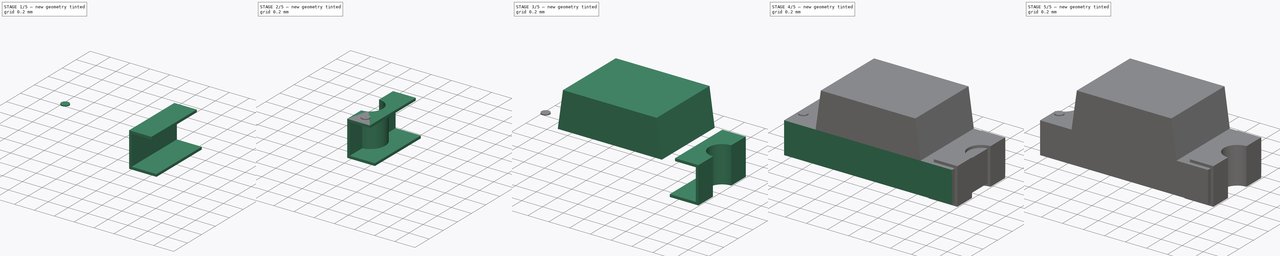
[diagram: build sequence overview — one tinted view per stage of 5, left to right]
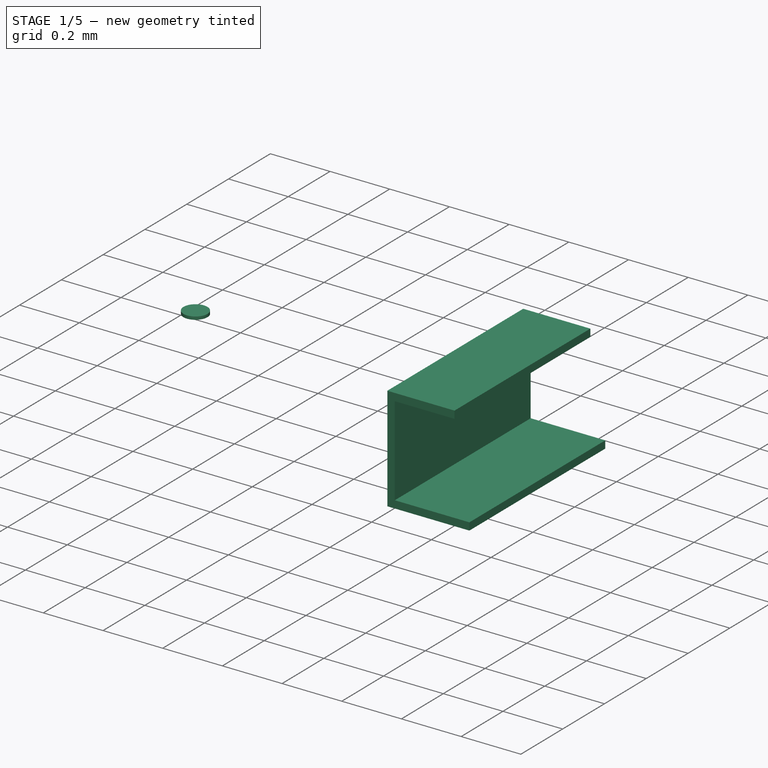
[diagram: stage 1 of 5 — iso view after this stage's code; geometry added in this stage tinted green]
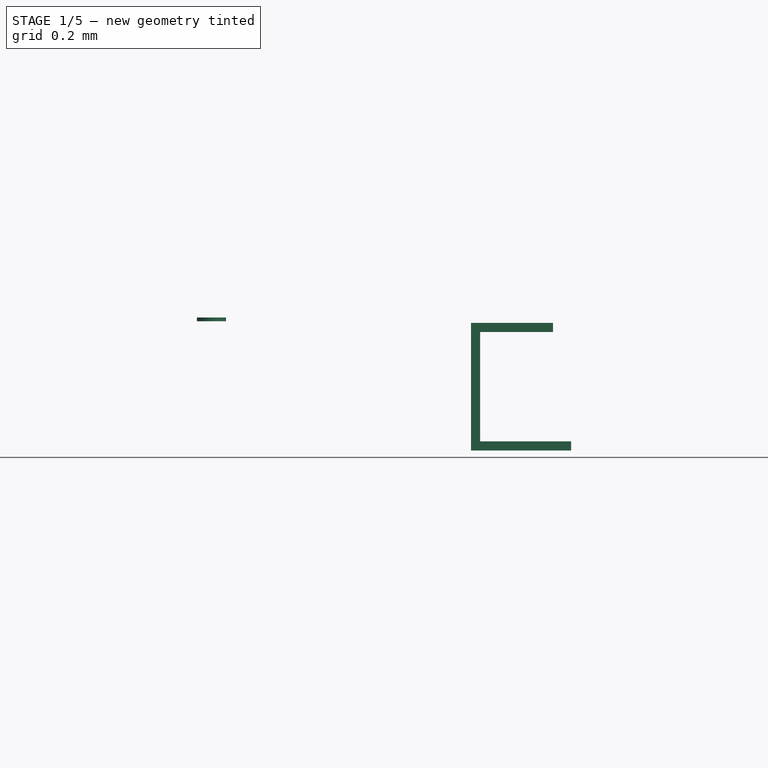
[diagram: stage 1 of 5 — front view after this stage's code; geometry added in this stage tinted green]
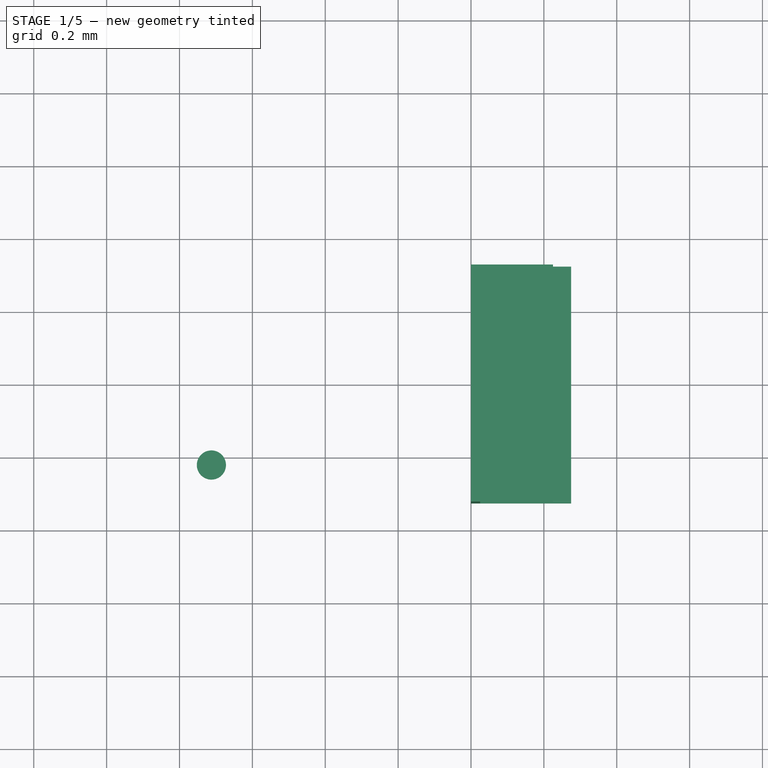
[diagram: stage 1 of 5 — top view after this stage's code; geometry added in this stage tinted green]
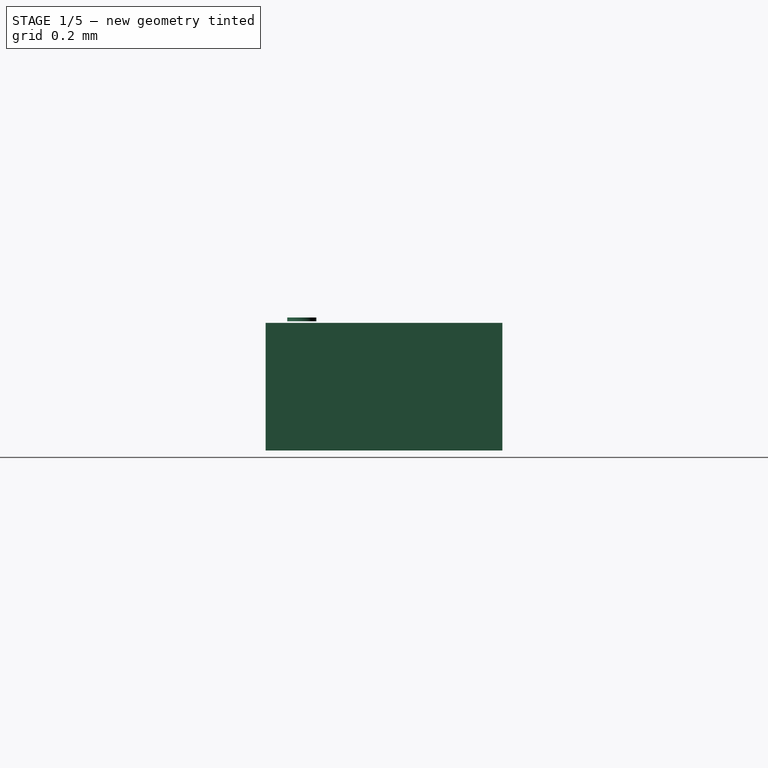
[diagram: stage 1 of 5 — right view after this stage's code; geometry added in this stage tinted green]
FCSTD DOCUMENT  (FreeCAD 0.16R6703 (Git))
Label: LED_0603
License: All rights reserved
LicenseURL: http://en.wikipedia.org/wiki/All_rights_reserved
objects: Sketcher::SketchObject×6, App::DocumentObjectGroup×6, Part::FeaturePython×5, PartDesign::Pad×4, PartDesign::Pocket×2, Part::Part2DObjectPython×1, Part::Extrusion×1, PartDesign::Mirrored×1, Part::Box×1, Part::Mirroring×1
note: 28 computed .brp shape members not serialized (recipe doc carries the construction recipe); baked Part::Feature solids carry a one-line shape summary decoded from their .brp

FEATURE [Part::Part2DObjectPython] Circle  # Draft 2D object (typed FeaturePython)
  FirstAngle = 0
  LastAngle = 0
  MakeFace = true
  Placement = pos=(0.292125,0.09225,0.145454) rot=(0,0,1;0rad)
  Radius = 0.04
FEATURE [Part::Extrusion] Extrude
  Base = -> Circle
  Dir = (0,0,0.01)
  Placement = pos=(-1.00462,-0.31775,0.209312) rot=(0,0,1;0rad)
  Solid = true
FEATURE [Sketcher::SketchObject] Sketch004
  Placement = pos=(0,0,0) rot=(1,0,0;1.5708rad)
  sketch-geometry (9):
    g0: LineSegment StartX=0.225 StartY=0.35 StartZ=0 EndX=0 EndY=0.35 EndZ=0
    g1: LineSegment StartX=0 StartY=0.35 StartZ=0 EndX=0 EndY=0 EndZ=0
    g2: LineSegment StartX=0 StartY=0 StartZ=0 EndX=0.275 EndY=0 EndZ=0
    g3: LineSegment StartX=0.275 StartY=0 StartZ=0 EndX=0.275 EndY=0.025 EndZ=0
    g4: LineSegment StartX=0.275 StartY=0.025 StartZ=0 EndX=0.025 EndY=0.025 EndZ=0
    g5: LineSegment StartX=0.025 StartY=0.025 StartZ=0 EndX=0.025 EndY=0.325 EndZ=0
    g6: LineSegment StartX=0.025 StartY=0.325 StartZ=0 EndX=0.225 EndY=0.325 EndZ=0
    g7: LineSegment StartX=0.225 StartY=0.325 StartZ=0 EndX=0.225 EndY=0.35 EndZ=0
    g8: LineSegment [constr] StartX=0 StartY=0.175 StartZ=0 EndX=0.025 EndY=0.175 EndZ=0
  constraints (27):
    c: Horizontal(g0)
    c: Coincident(g0,g1)
    c: Vertical(g1)
    c: Coincident(g1,g2)
    c: Horizontal(g2)
    c: Coincident(g2,g3)
    c: Vertical(g3)
    c: Coincident(g3,g4)
    c: Horizontal(g4)
    c: Coincident(g4,g5)
    c: Vertical(g5)
    c: Coincident(g5,g6)
    c: Horizontal(g6)
    c: Coincident(g6,g7)
    c: Coincident(g7,g0)
    c: Vertical(g7)
    c: Equal(g7,g3)
    c: PointOnObject(g8,g1)
    c: PointOnObject(g8,g5)
    c: Horizontal(g8)
    c: Symmetric(g5,g4,g8)
    c: Equal(g8,g7)
    c: DistanceY(g7,g7) = 0.025
    c: DistanceY(g1,g1) = 0.35
    c: DistanceX(g0,g0) = 0.225
    c: DistanceX(g2,g2) = 0.275
    c: Coincident(g1,g-1)
FEATURE [PartDesign::Pad] Pad002
  Length = 0.65
  Length2 = 100
  Midplane = true
  Placement = pos=(0,0,0) rot=(1,0,0;1.5708rad)
  Sketch = -> Sketch004
  Type = 0
FEATURE [App::DocumentObjectGroup] Group005  label="mark-src"
  Group = -> [Extrude]
FEATURE [App::DocumentObjectGroup] Group  label="src"
  Group = -> [Group001,Group002,Group003,Group004,Group005]
FEATURE [Part::FeaturePython] Clone008  label="mark"  # Draft clone (typed FeaturePython)
  Objects = -> [Extrude]
  Placement = pos=(-1.00462,-0.31775,0.209312) rot=(0,0,1;0rad)
  Scale = (1,1,1)
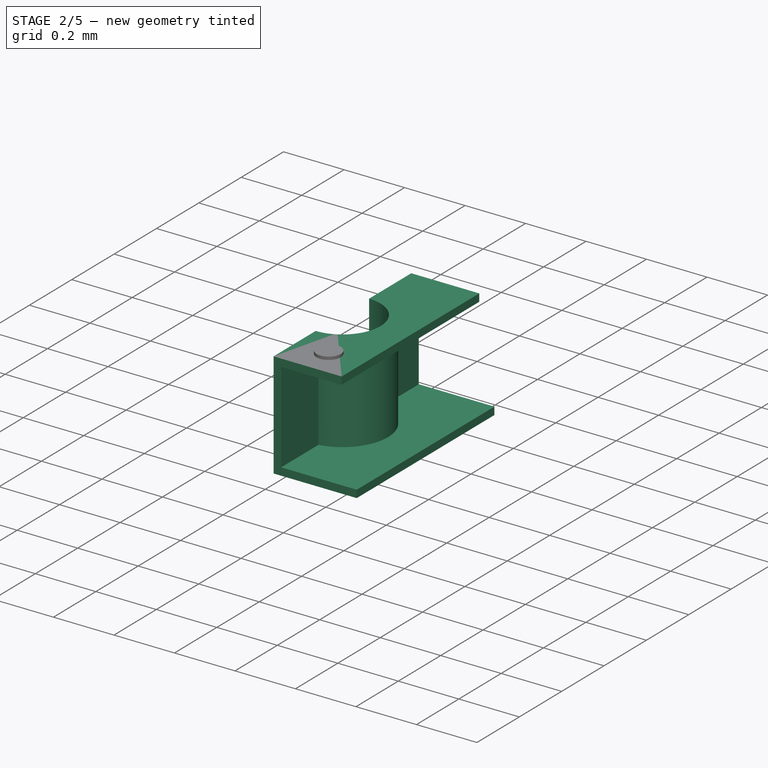
[diagram: stage 2 of 5 — iso view after this stage's code; geometry added in this stage tinted green]
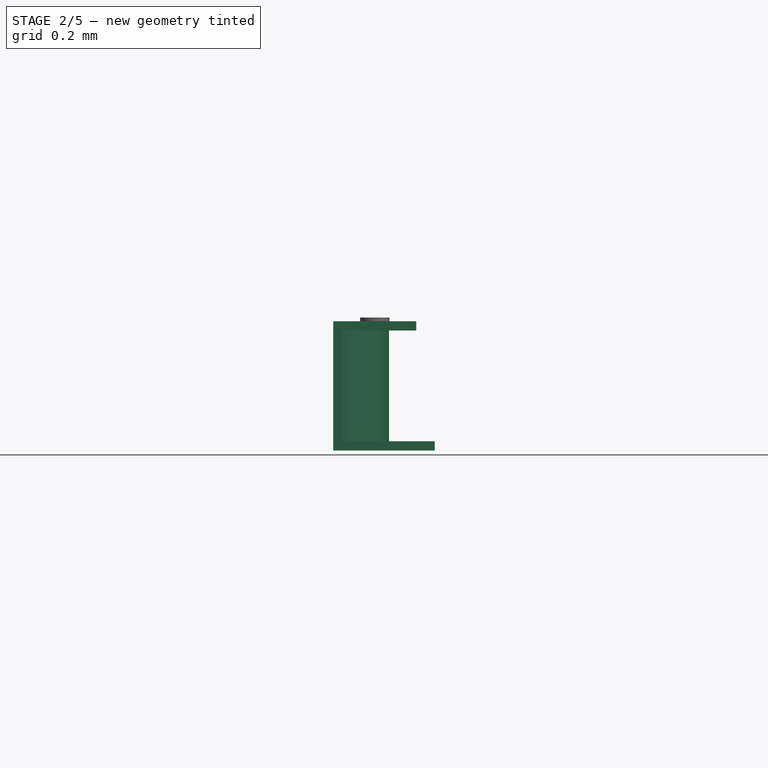
[diagram: stage 2 of 5 — front view after this stage's code; geometry added in this stage tinted green]
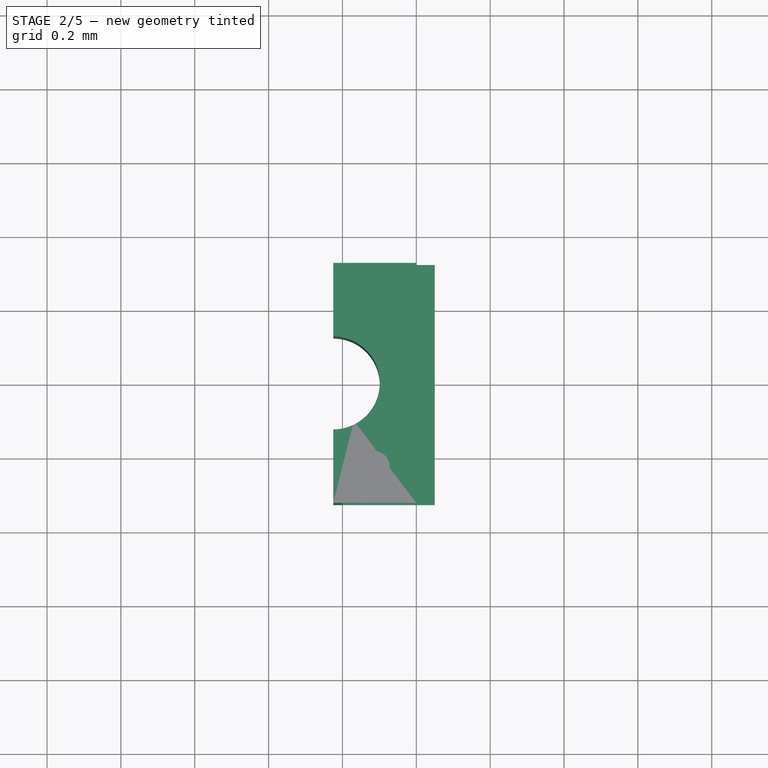
[diagram: stage 2 of 5 — top view after this stage's code; geometry added in this stage tinted green]
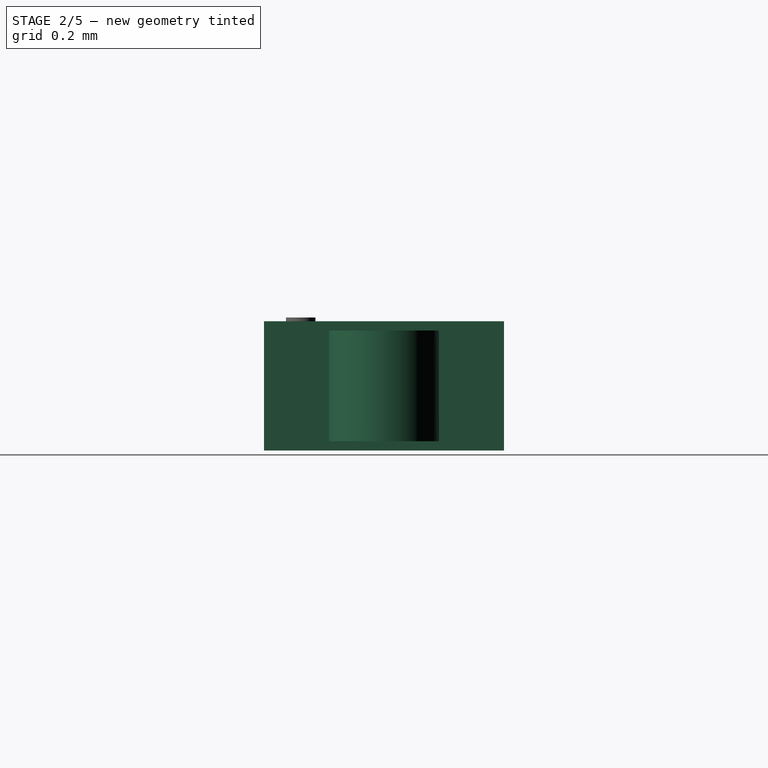
[diagram: stage 2 of 5 — right view after this stage's code; geometry added in this stage tinted green]
FEATURE [Sketcher::SketchObject] Sketch005
  Placement = pos=(0,0,0.35) rot=(0,0,1;3.14159rad)
  Support = -> Pad002 [Face1]
  sketch-geometry (2):
    g0: ArcOfCircle CenterX=0 CenterY=0 CenterZ=0 NormalX=0 NormalY=0 NormalZ=1 Radius=0.151 StartAngle=1.5708 EndAngle=4.71239
    g1: LineSegment StartX=0 StartY=0.151 StartZ=0 EndX=0 EndY=-0.151 EndZ=0
  constraints (7):
    c: Coincident(g0,g-1)
    c: PointOnObject(g0,g-2)
    c: PointOnObject(g0,g-2)
    c: Radius(g0) = 0.151
    c: Vertical(g1)
    c: Coincident(g0,g1)
    c: Coincident(g1,g0)
FEATURE [PartDesign::Pad] Pad003
  Length = 10
  Length2 = 100
  Placement = pos=(0,0,0) rot=(1,0,0;1.5708rad)
  Reversed = true
  Sketch = -> Sketch005
  Type = 1
FEATURE [Sketcher::SketchObject] Sketch006
  Placement = pos=(0,0,0) rot=(1,0,0;3.14159rad)
  Support = -> Pad003 [Face7]
  sketch-geometry (2):
    g0: ArcOfCircle CenterX=0 CenterY=0 CenterZ=0 NormalX=0 NormalY=0 NormalZ=1 Radius=0.126 StartAngle=4.55298 EndAngle=8.01339
    g1: LineSegment StartX=-0.02 StartY=0.124403 StartZ=0 EndX=-0.02 EndY=-0.124403 EndZ=0
  constraints (6):
    c: Coincident(g0,g-1)
    c: Vertical(g1)
    c: Coincident(g1,g0)
    c: Coincident(g1,g0)
    c: Radius(g0) = 0.126
    c: DistanceX(g0,g-1) = 0.02
FEATURE [PartDesign::Pocket] Pocket001
  Length = 5
  Placement = pos=(0,0,0) rot=(1,0,0;1.5708rad)
  Sketch = -> Sketch006
  Type = 1
FEATURE [App::DocumentObjectGroup] Group004  label="side-src"
  Group = -> [Pad002,Pad003,Pocket001]
FEATURE [Part::FeaturePython] Clone007  label="led-side"  # Draft clone (typed FeaturePython)
  Objects = -> [Pocket001]
  Placement = pos=(-0.825,-7.16e-09,0.00476642) rot=(1,0,0;1.5708rad)
  Scale = (1,1,1)
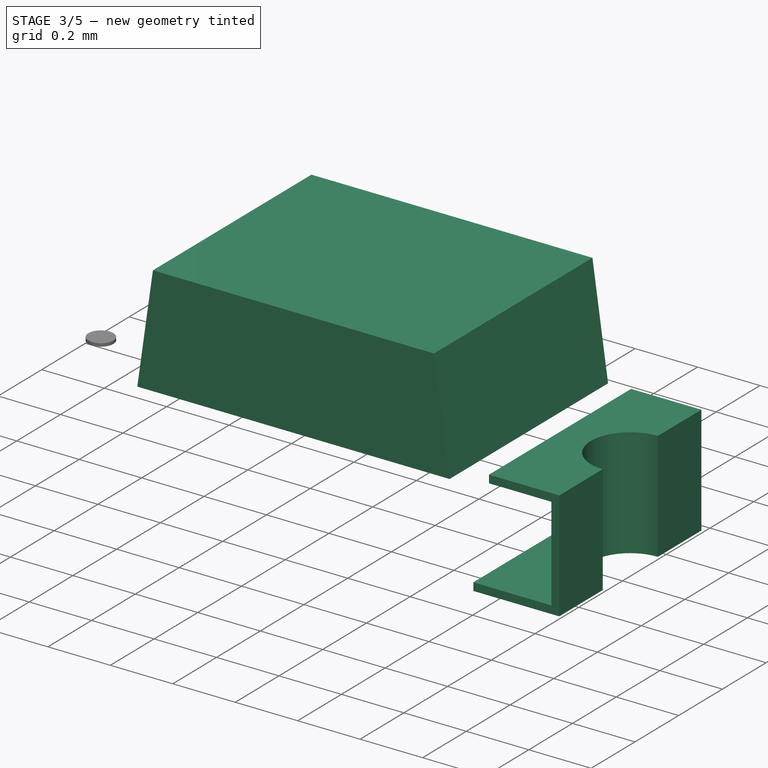
[diagram: stage 3 of 5 — iso view after this stage's code; geometry added in this stage tinted green]
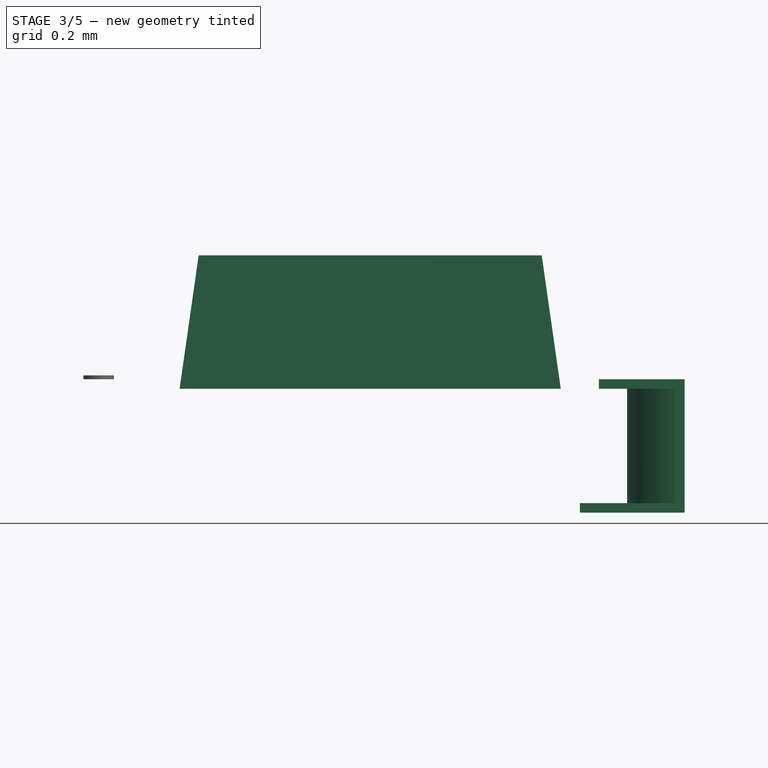
[diagram: stage 3 of 5 — front view after this stage's code; geometry added in this stage tinted green]
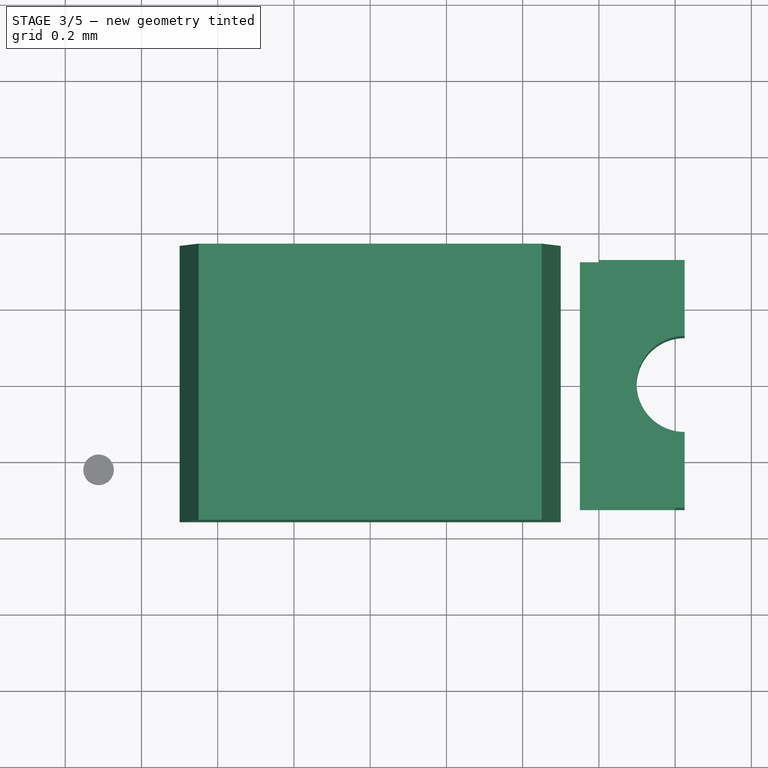
[diagram: stage 3 of 5 — top view after this stage's code; geometry added in this stage tinted green]
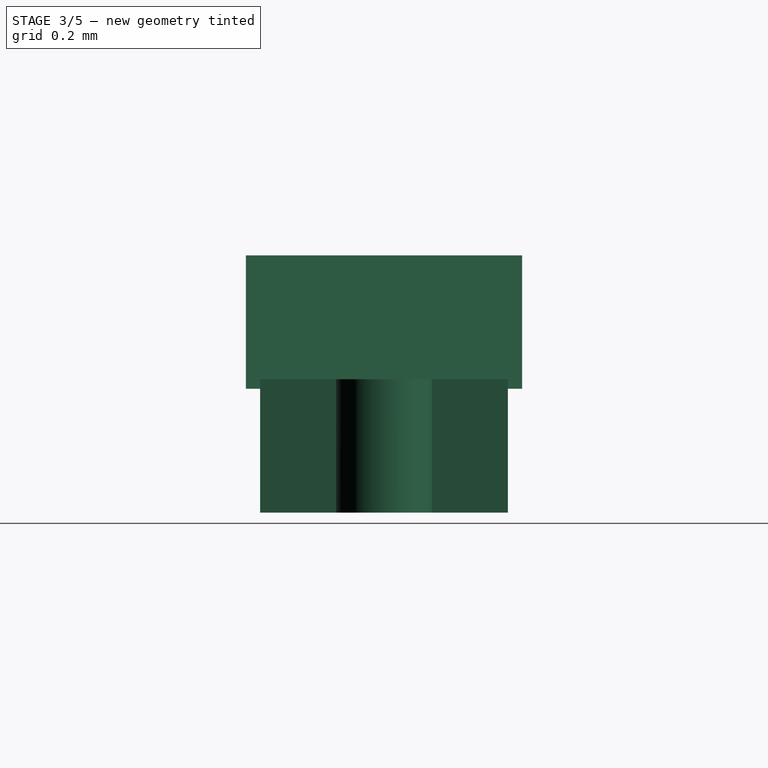
[diagram: stage 3 of 5 — right view after this stage's code; geometry added in this stage tinted green]
FEATURE [Sketcher::SketchObject] Sketch003  label="led-top-sketch"
  Placement = pos=(4.323e-09,-5.968e-09,0.329766) rot=(1,0,0;1.5708rad)
  sketch-geometry (4):
    g0: LineSegment StartX=0.5 StartY=0 StartZ=0 EndX=-0.5 EndY=0 EndZ=0
    g1: LineSegment StartX=-0.5 StartY=0 StartZ=0 EndX=-0.45 EndY=0.35 EndZ=0
    g2: LineSegment StartX=-0.45 StartY=0.35 StartZ=0 EndX=0.45 EndY=0.35 EndZ=0
    g3: LineSegment StartX=0.45 StartY=0.35 StartZ=0 EndX=0.5 EndY=0 EndZ=0
  constraints (12):
    c: Horizontal(g0)
    c: Coincident(g0,g1)
    c: Coincident(g1,g2)
    c: Horizontal(g2)
    c: Coincident(g2,g3)
    c: Coincident(g3,g0)
    c: PointOnObject(g0,g-1)
    c: Symmetric(g0,g0,g-2)
    c: Symmetric(g1,g2,g-2)
    c: DistanceX(g0,g0) = 1
    c: DistanceX(g2,g2) = 0.9
    c: DistanceY(g0,g2) = 0.35
FEATURE [PartDesign::Pad] Pad001
  Length = 0.725
  Length2 = 100
  Midplane = true
  Placement = pos=(4.323e-09,-5.968e-09,0.329766) rot=(1,0,0;1.5708rad)
  Sketch = -> Sketch003
  Type = 0
FEATURE [App::DocumentObjectGroup] Group003  label="top-src"
  Group = -> [Pad001]
FEATURE [Part::FeaturePython] Clone006  label="led-top"  # Draft clone (typed FeaturePython)
  Objects = -> [Pad001]
  Placement = pos=(4.323e-09,-5.968e-09,0.329766) rot=(1,0,0;1.5708rad)
  Scale = (1,1,1)
FEATURE [Part::Mirroring] Part__Mirroring  label="led-side (Mirror #1)"
  Base = (0,0,0)
  Normal = (1,0,0)
  Source = -> Clone007
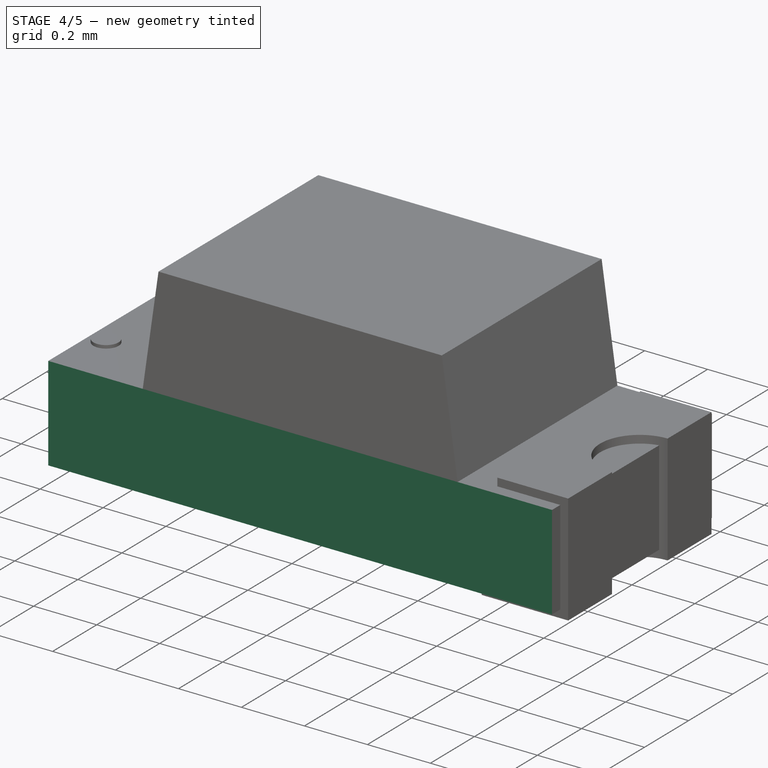
[diagram: stage 4 of 5 — iso view after this stage's code; geometry added in this stage tinted green]
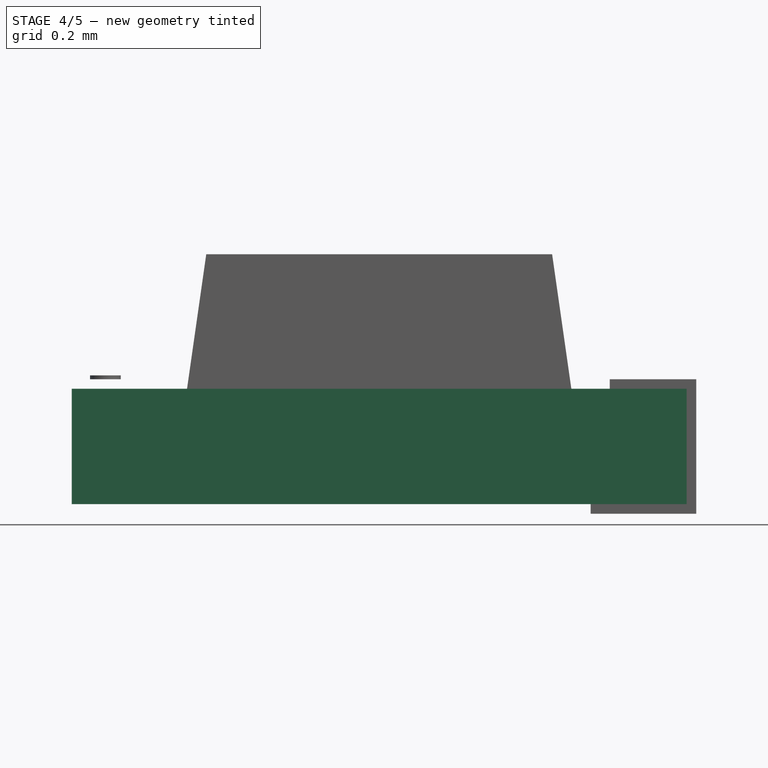
[diagram: stage 4 of 5 — front view after this stage's code; geometry added in this stage tinted green]
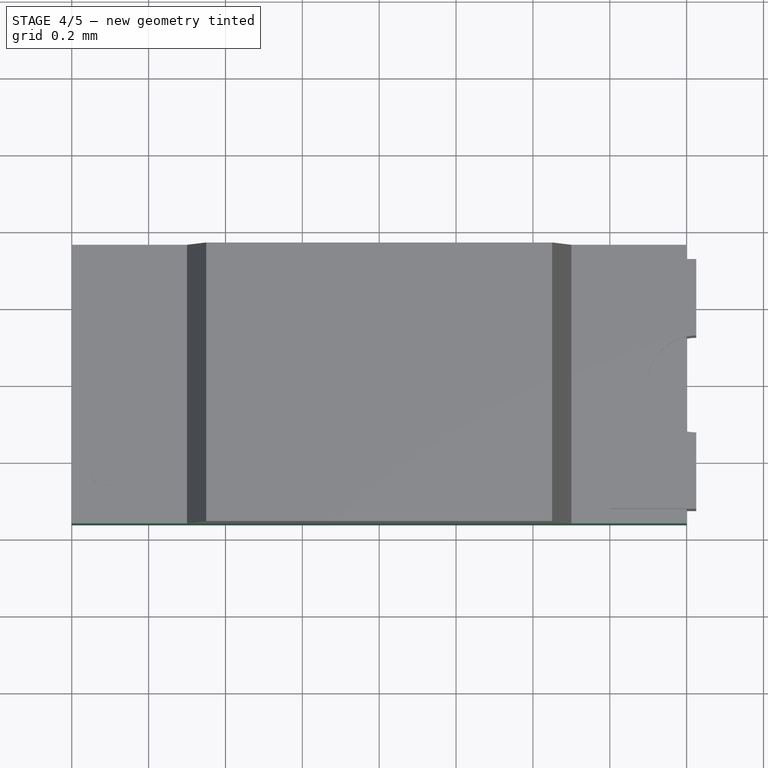
[diagram: stage 4 of 5 — top view after this stage's code; geometry added in this stage tinted green]
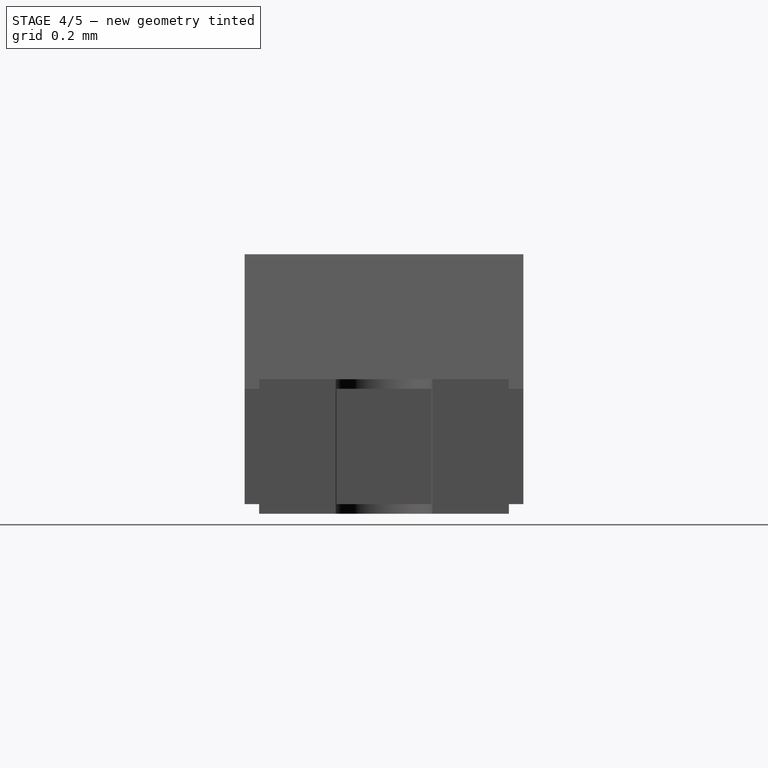
[diagram: stage 4 of 5 — right view after this stage's code; geometry added in this stage tinted green]
FEATURE [Sketcher::SketchObject] Sketch  label="body-sketch"
  Placement = pos=(8.646e-09,-1.9082e-08,0.0297664) rot=(0,0,1;0rad)
  sketch-geometry (4):
    g0: LineSegment StartX=-0.8 StartY=0.3625 StartZ=0 EndX=0.8 EndY=0.3625 EndZ=0
    g1: LineSegment StartX=0.8 StartY=0.3625 StartZ=0 EndX=0.8 EndY=-0.3625 EndZ=0
    g2: LineSegment StartX=0.8 StartY=-0.3625 StartZ=0 EndX=-0.8 EndY=-0.3625 EndZ=0
    g3: LineSegment StartX=-0.8 StartY=-0.3625 StartZ=0 EndX=-0.8 EndY=0.3625 EndZ=0
  constraints (4):
    c: Horizontal(g0)
    c: Vertical(g1)
    c: Horizontal(g2)
    c: Vertical(g3)
FEATURE [PartDesign::Pad] Pad  label="body-pad"
  Length = 0.3
  Length2 = 100
  Placement = pos=(8.646e-09,-1.9082e-08,0.0297664) rot=(0,0,1;0rad)
  Sketch = -> Sketch
  Type = 0
FEATURE [Part::Box] Box  label="Cube"
  Height = 0.075
  Length = 0.16
  Placement = pos=(-0.0800286,-0.0744368,0.329766) rot=(0,0,1;0rad)
  Width = 0.149
FEATURE [App::DocumentObjectGroup] Group002  label="inner"
  Group = -> [Box]
FEATURE [Part::FeaturePython] Clone  label="led-inner"  # Draft clone (typed FeaturePython)
  Objects = -> [Box]
  Placement = pos=(-0.0800286,-0.0744368,0.329766) rot=(0,0,1;0rad)
  Scale = (1,1,1)
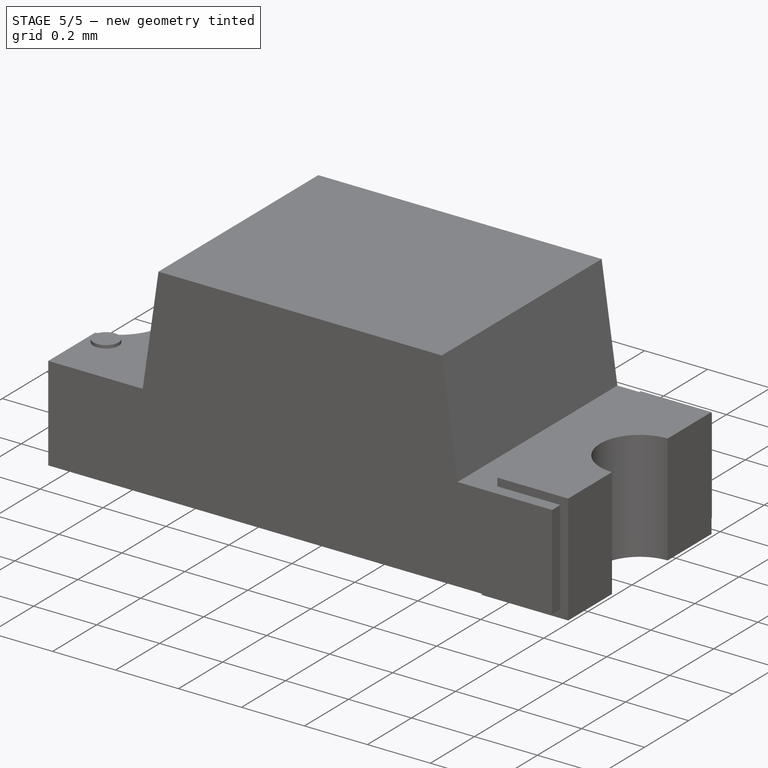
[diagram: stage 5 of 5 — iso view after this stage's code; geometry added in this stage tinted green]
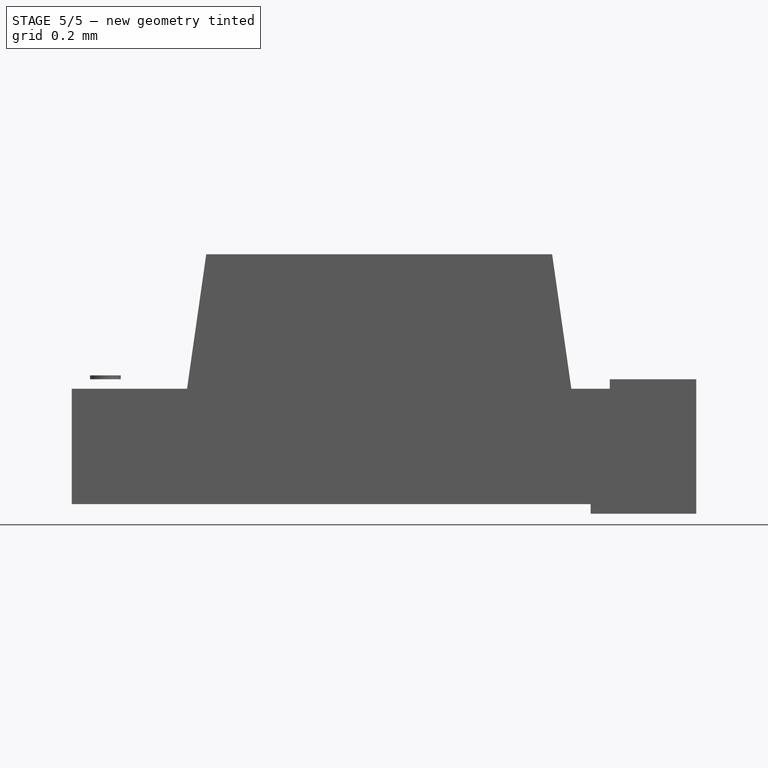
[diagram: stage 5 of 5 — front view after this stage's code; geometry added in this stage tinted green]
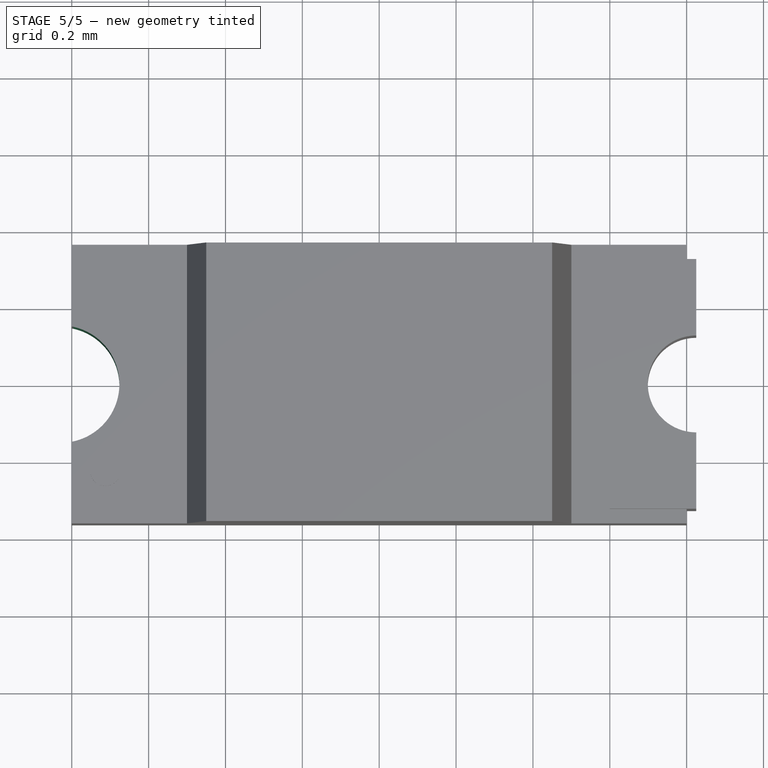
[diagram: stage 5 of 5 — top view after this stage's code; geometry added in this stage tinted green]
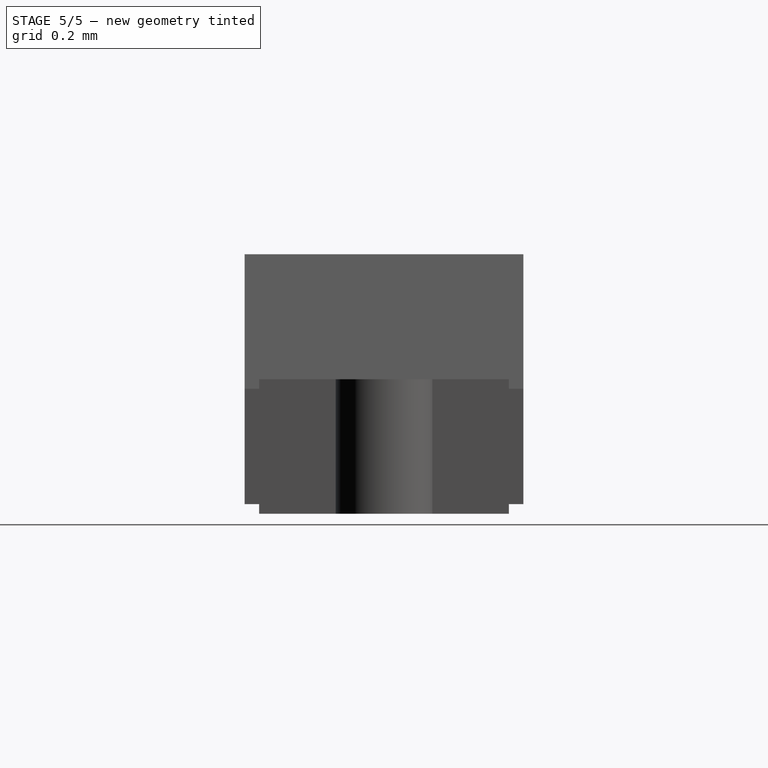
[diagram: stage 5 of 5 — right view after this stage's code; geometry added in this stage tinted green]
FEATURE [Sketcher::SketchObject] Sketch001
  ExternalGeometry = -> [Pad]
  Placement = pos=(8.646e-09,-1.9082e-08,0.329766) rot=(0,0,1;0rad)
  Support = -> Pad [Face6]
  sketch-geometry (2):
    g0: ArcOfCircle CenterX=-0.828713 CenterY=0 CenterZ=0 NormalX=0 NormalY=0 NormalZ=1 Radius=0.152707 StartAngle=4.90154 EndAngle=7.66483
    g1: LineSegment StartX=-0.8 StartY=0.149983 StartZ=0 EndX=-0.8 EndY=-0.149983 EndZ=0
  constraints (7):
    c: PointOnObject(g0,g-1)
    c: Vertical(g1)
    c: Coincident(g1,g0)
    c: Coincident(g1,g0)
    c: DistanceX(g0,g-3) = 0.028713
    c: Radius(g0) = 0.152707
    c: PointOnObject(g0,g-3)
FEATURE [PartDesign::Pocket] Pocket
  Length = 5
  Placement = pos=(8.646e-09,-1.9082e-08,0.0297664) rot=(0,0,1;0rad)
  Sketch = -> Sketch001
  Type = 1
FEATURE [PartDesign::Mirrored] Mirrored
  MirrorPlane = -> Sketch001 [V_Axis]
  Originals = -> [Pocket]
  Placement = pos=(8.646e-09,-1.9082e-08,0.0297664) rot=(0,0,1;0rad)
FEATURE [App::DocumentObjectGroup] Group001  label="body-src"
  Group = -> [Pad,Pocket,Mirrored]
FEATURE [Part::FeaturePython] Clone005  label="led-body"  # Draft clone (typed FeaturePython)
  Objects = -> [Mirrored]
  Placement = pos=(8.646e-09,-1.9082e-08,0.0297664) rot=(0,0,1;0rad)
  Scale = (1,1,1)
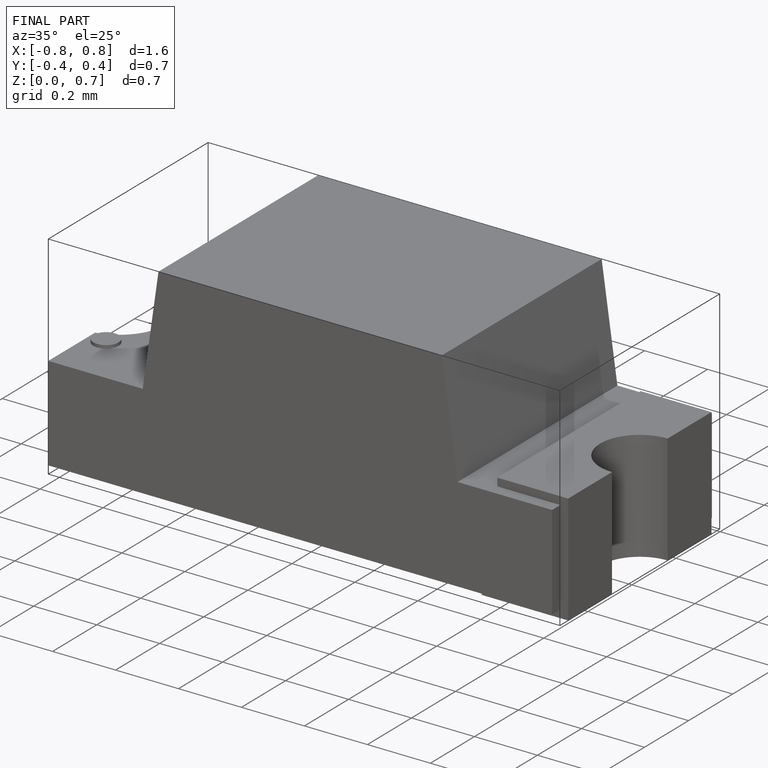
[diagram: finished part — iso view with bounding-box wireframe]
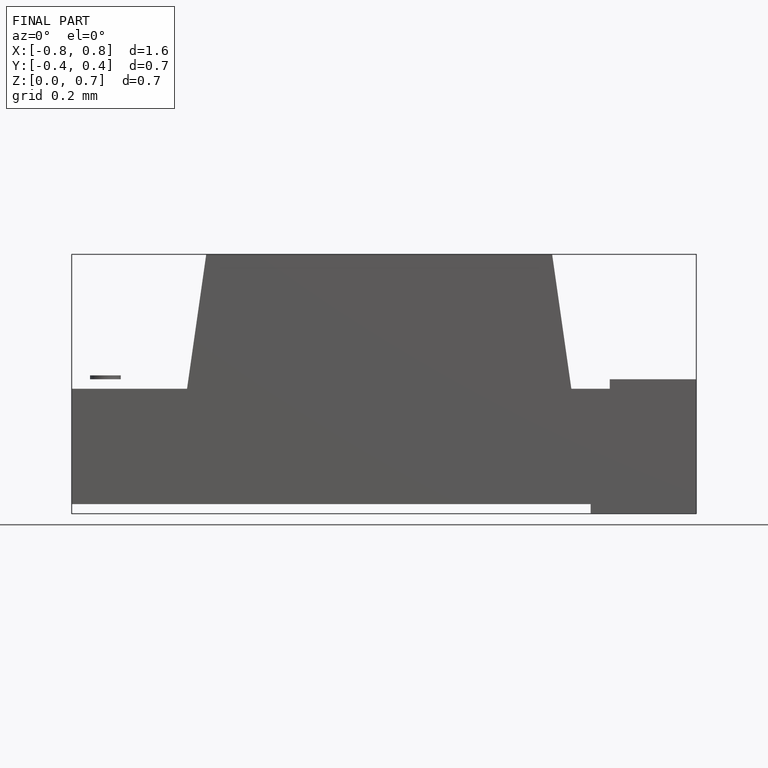
[diagram: finished part — front view with bounding-box wireframe]
